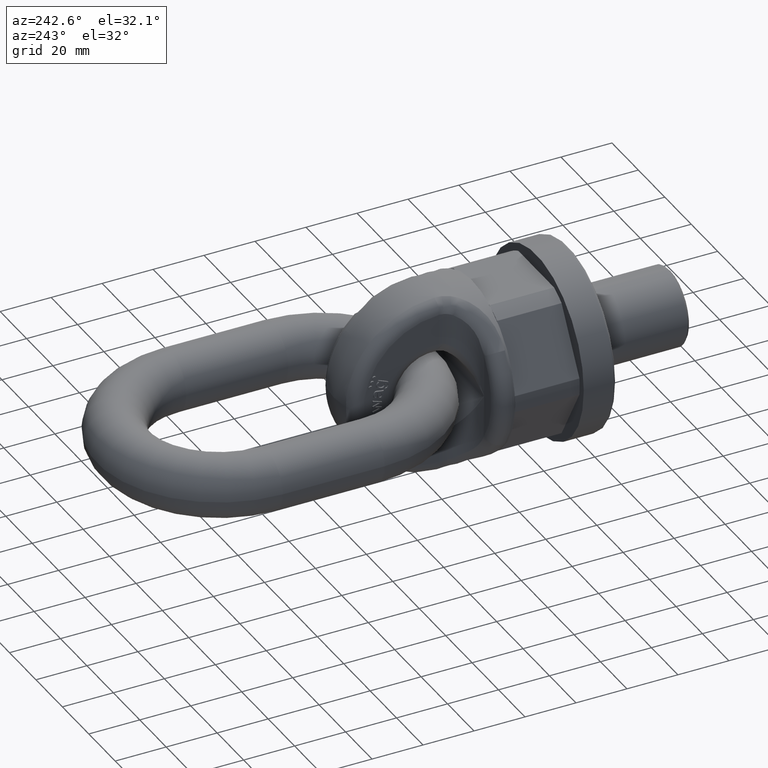
[diagram: clean part render]
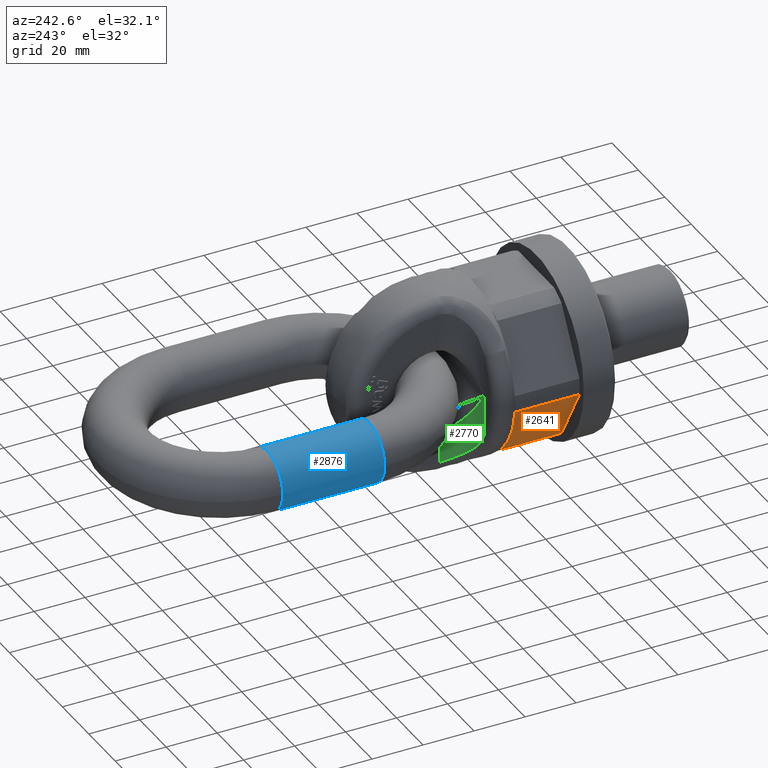
[diagram: same view with three faces highlighted in distinct colors, each labeled with its STEP entity id]
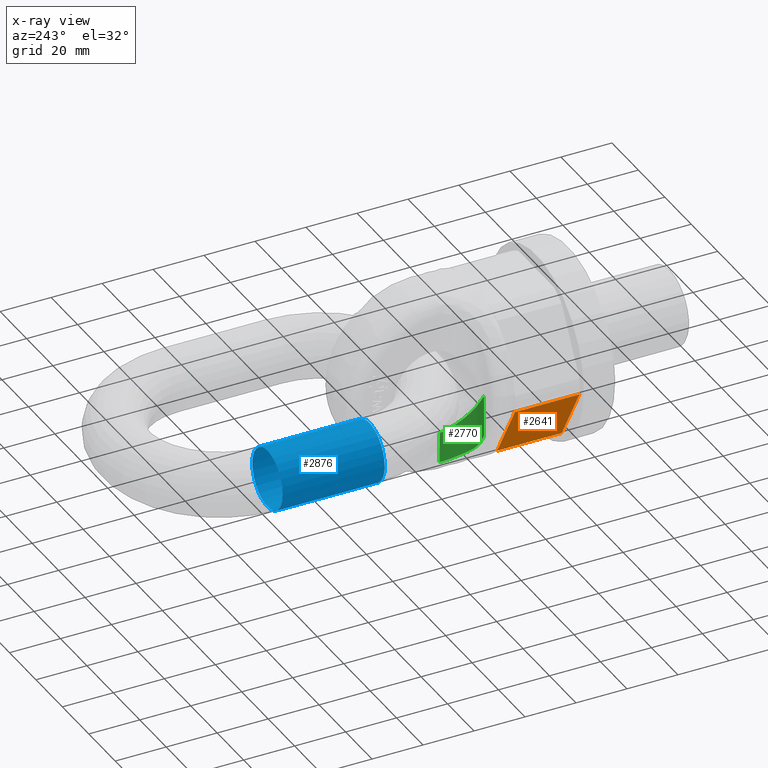
[diagram: x-ray of the same camera — body ghosted, the three highlighted faces saturated]
A machine part, auxiliary view with three faces highlighted in distinct colors.
The next image is the same camera in x-ray (body ghosted, the three faces saturated) — at least one of them is partly hidden behind the body in this view.
Their STEP definitions:

[orange] entity #2641 — the highlighted planar face has unit normal (-0.866, 0, -0.5).
#1799=FACE_OUTER_BOUND('',#3064,.T.);
#2036=LINE('',#6582,#2292);
#2042=LINE('',#6603,#2298);
#2043=LINE('',#6605,#2299);
#2044=LINE('',#6607,#2300);
#2292=VECTOR('',#5820,1.);
#2298=VECTOR('',#5840,1.);
#2299=VECTOR('',#5841,1.);
#2300=VECTOR('',#5842,1.);
#2641=ADVANCED_FACE('',(#1799),#2883,.T.);
#2883=PLANE('',#5610);
#3064=EDGE_LOOP('',(#3364,#3365,#3366,#3367));
#3364=ORIENTED_EDGE('',*,*,#4952,.F.);
#3365=ORIENTED_EDGE('',*,*,#4942,.T.);
#3366=ORIENTED_EDGE('',*,*,#4953,.F.);
#3367=ORIENTED_EDGE('',*,*,#4954,.T.);
#4544=VERTEX_POINT('',#6581);
#4545=VERTEX_POINT('',#6583);
#4553=VERTEX_POINT('',#6604);
#4554=VERTEX_POINT('',#6606);
#4942=EDGE_CURVE('',#4545,#4544,#2036,.T.);
#4952=EDGE_CURVE('',#4545,#4553,#2042,.T.);
#4953=EDGE_CURVE('',#4554,#4544,#2043,.T.);
#4954=EDGE_CURVE('',#4554,#4553,#2044,.T.);
#5610=AXIS2_PLACEMENT_3D('',#6608,#5843,#5844);
#5820=DIRECTION('',(-0.499999999999999,-2.21564388003632E-17,0.866025403784439));
#5840=DIRECTION('',(-2.4492935982947E-17,1.,0.));
#5841=DIRECTION('',(2.4492935982947E-17,-1.,0.));
#5842=DIRECTION('',(0.499999999999999,0.,-0.866025403784439));
#5843=DIRECTION('',(-0.866025403784439,0.,-0.499999999999999));
#5844=DIRECTION('',(-0.499999999999999,0.,0.866025403784439));
#6581=CARTESIAN_POINT('',(-32.7446367427675,12.6666666666667,-3.28462548613991));
#6582=CARTESIAN_POINT('',(-16.9807621135332,12.6666666666667,-30.5884572681198));
#6583=CARTESIAN_POINT('',(-19.2168874842988,12.6666666666667,-26.71537451386));
#6603=CARTESIAN_POINT('',(-19.2168874842988,1.65667148290517E-16,-26.71537451386));
#6604=CARTESIAN_POINT('',(-19.2168874842988,38.,-26.71537451386));
#6605=CARTESIAN_POINT('',(-32.7446367427675,-1.65667148290517E-16,-3.28462548613991));
#6606=CARTESIAN_POINT('',(-32.7446367427675,38.,-3.2846254861399));
#6607=CARTESIAN_POINT('',(-34.6410161513775,38.,0.));
#6608=CARTESIAN_POINT('',(-34.6410161513775,38.,0.));

[blue] entity #2876 — the highlighted cylindrical surface (bore or boss wall) has radius 11.5 mm, axis along (0, 1, 0).
#2031=CYLINDRICAL_SURFACE('',#5795,11.5);
#2876=ADVANCED_FACE('',(#3049,#3050),#2031,.T.);
#3049=FACE_BOUND('',#3335,.T.);
#3050=FACE_BOUND('',#3336,.T.);
#3335=EDGE_LOOP('',(#4527));
#3336=EDGE_LOOP('',(#4528));
#4527=ORIENTED_EDGE('',*,*,#5525,.T.);
#4528=ORIENTED_EDGE('',*,*,#5526,.F.);
#4929=VERTEX_POINT('',#9730);
#4930=VERTEX_POINT('',#9732);
#5525=EDGE_CURVE('',#4929,#4929,#5591,.T.);
#5526=EDGE_CURVE('',#4930,#4930,#5592,.T.);
#5591=CIRCLE('',#5793,11.5);
#5592=CIRCLE('',#5794,11.5);
#5793=AXIS2_PLACEMENT_3D('',#9729,#6545,#6546);
#5794=AXIS2_PLACEMENT_3D('',#9731,#6547,#6548);
#5795=AXIS2_PLACEMENT_3D('',#9733,#6549,#6550);
#6545=DIRECTION('',(-1.18827878355489E-15,1.,0.));
#6546=DIRECTION('',(-1.,-1.20676415720126E-15,0.));
#6547=DIRECTION('',(-1.18827878355489E-15,1.,0.));
#6548=DIRECTION('',(-1.,0.,0.));
#6549=DIRECTION('',(0.,1.,0.));
#6550=DIRECTION('',(0.,0.,1.));
#9729=CARTESIAN_POINT('',(-36.5,97.,0.));
#9730=CARTESIAN_POINT('',(-48.,96.9999999999999,0.));
#9731=CARTESIAN_POINT('',(-36.5,137.,0.));
#9732=CARTESIAN_POINT('',(-48.,137.,0.));
#9733=CARTESIAN_POINT('',(-36.5,97.,0.));

[green] entity #2770 — the highlighted cylindrical surface (edge-blend (fillet) strip) has radius 11.5 mm, axis along (-0, 0, 1).
#532=B_SPLINE_CURVE_WITH_KNOTS('',3,(#8553,#8554,#8555,#8556,#8557,#8558,
#8559,#8560),.UNSPECIFIED.,.F.,.F.,(4,2,2,4),(0.,0.5,0.75,1.),
 .UNSPECIFIED.);
#533=B_SPLINE_CURVE_WITH_KNOTS('',3,(#8561,#8562,#8563,#8564),
 .UNSPECIFIED.,.F.,.F.,(4,4),(0.,1.),.UNSPECIFIED.);
#534=B_SPLINE_CURVE_WITH_KNOTS('',3,(#8566,#8567,#8568,#8569,#8570,#8571),
 .UNSPECIFIED.,.F.,.F.,(4,2,4),(0.,0.5,1.),.UNSPECIFIED.);
#1913=FACE_OUTER_BOUND('',#3222,.T.);
#2026=CYLINDRICAL_SURFACE('',#5727,11.5);
#2179=LINE('',#8370,#2481);
#2207=LINE('',#8551,#2509);
#2481=VECTOR('',#6251,1.);
#2509=VECTOR('',#6285,1.);
#2770=ADVANCED_FACE('',(#1913),#2026,.F.);
#3222=EDGE_LOOP('',(#4064,#4065,#4066,#4067,#4068));
#4064=ORIENTED_EDGE('',*,*,#5335,.F.);
#4065=ORIENTED_EDGE('',*,*,#5336,.T.);
#4066=ORIENTED_EDGE('',*,*,#5285,.F.);
#4067=ORIENTED_EDGE('',*,*,#5337,.T.);
#4068=ORIENTED_EDGE('',*,*,#5338,.T.);
#4662=VERTEX_POINT('',#7105);
#4781=VERTEX_POINT('',#8371);
#4782=VERTEX_POINT('',#8372);
#4831=VERTEX_POINT('',#8552);
#4832=VERTEX_POINT('',#8565);
#5285=EDGE_CURVE('',#4781,#4782,#2179,.T.);
#5335=EDGE_CURVE('',#4662,#4831,#2207,.T.);
#5336=EDGE_CURVE('',#4662,#4782,#532,.T.);
#5337=EDGE_CURVE('',#4781,#4832,#533,.T.);
#5338=EDGE_CURVE('',#4832,#4831,#534,.T.);
#5727=AXIS2_PLACEMENT_3D('',#8572,#6286,#6287);
#6251=DIRECTION('',(-2.34291072916505E-15,0.,1.));
#6285=DIRECTION('',(2.34291072916505E-15,0.,-1.));
#6286=DIRECTION('',(-2.34291072916505E-15,0.,1.));
#6287=DIRECTION('',(1.,0.,2.41352831440251E-15));
#7105=CARTESIAN_POINT('',(-23.,45.,-5.38869467707961E-14));
#8370=CARTESIAN_POINT('',(-11.5000000000001,56.5,32.4669536068448));
#8371=CARTESIAN_POINT('',(-11.4999999999999,56.5,-30.3067649213835));
#8372=CARTESIAN_POINT('',(-11.5,56.5,-18.3915741577495));
#8551=CARTESIAN_POINT('',(-22.9999999999999,45.,-32.4669536068449));
#8552=CARTESIAN_POINT('',(-23.,45.,-16.366358301606));
#8553=CARTESIAN_POINT('',(-23.,45.,-5.38869467707961E-14));
#8554=CARTESIAN_POINT('',(-20.5875549996444,45.,-3.66511348676937));
#8555=CARTESIAN_POINT('',(-18.1505055652431,45.7060209649007,-7.36077816048519));
#8556=CARTESIAN_POINT('',(-14.8462021251498,48.2713928799089,-12.4927495774917));
#8557=CARTESIAN_POINT('',(-13.8116325034163,49.3744623953451,-14.1208330035803));
#8558=CARTESIAN_POINT('',(-12.1307347710493,52.3698115308923,-16.9113574284354));
#8559=CARTESIAN_POINT('',(-11.5,54.2920871033146,-18.0470821639151));
#8560=CARTESIAN_POINT('',(-11.5,56.5,-18.3915741577495));
#8561=CARTESIAN_POINT('',(-11.4999999999999,56.5,-30.3067649213835));
#8562=CARTESIAN_POINT('',(-11.4999999999999,54.7139267212544,-30.349043054415));
#8563=CARTESIAN_POINT('',(-11.9325598729129,52.9822713711434,-29.9260515688375));
#8564=CARTESIAN_POINT('',(-12.6318169353505,51.5249844283744,-29.1708441442311));
#8565=CARTESIAN_POINT('',(-12.6318169353505,51.5249844283744,-29.1708441442311));
#8566=CARTESIAN_POINT('',(-12.6318169353505,51.5249844283744,-29.1708441442311));
#8567=CARTESIAN_POINT('',(-13.8558592455314,48.9740185935709,-27.8488612993836));
#8568=CARTESIAN_POINT('',(-15.9113250080997,47.1822162585958,-26.1578730647849));
#8569=CARTESIAN_POINT('',(-19.8426271006275,45.22607418125,-21.7367777284567));
#8570=CARTESIAN_POINT('',(-21.6187700503174,45.,-19.1513754385613));
#8571=CARTESIAN_POINT('',(-23.,45.,-16.366358301606));
#8572=CARTESIAN_POINT('',(-22.9999999999999,56.5,-39.6000000000001));